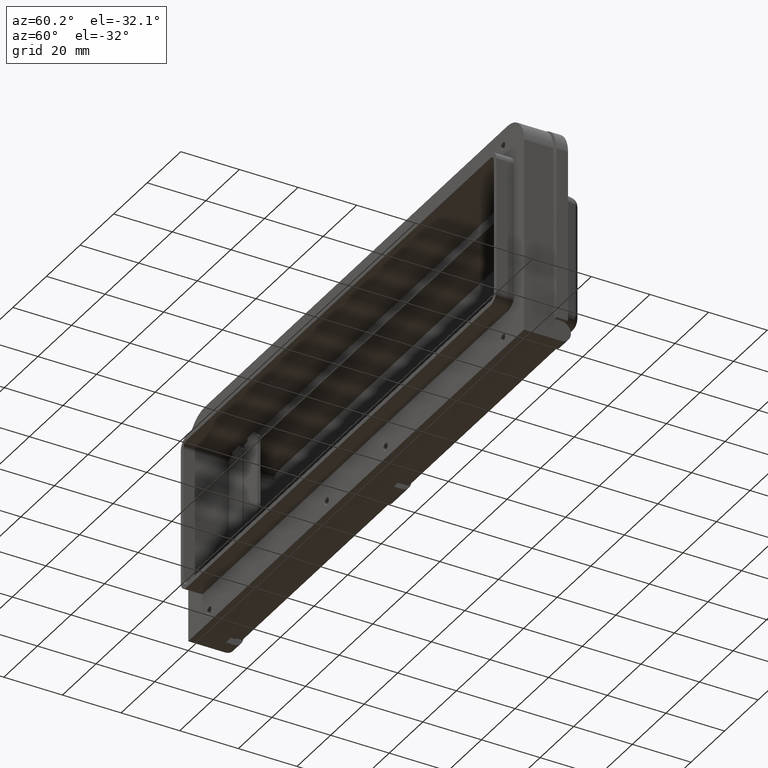
[diagram: clean part render]
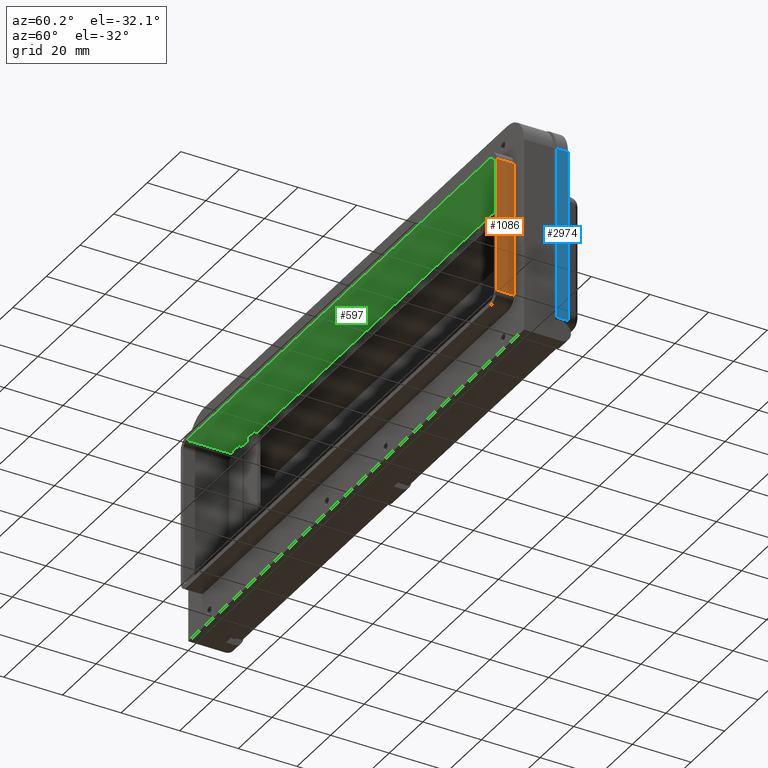
[diagram: same view with three faces highlighted in distinct colors, each labeled with its STEP entity id]
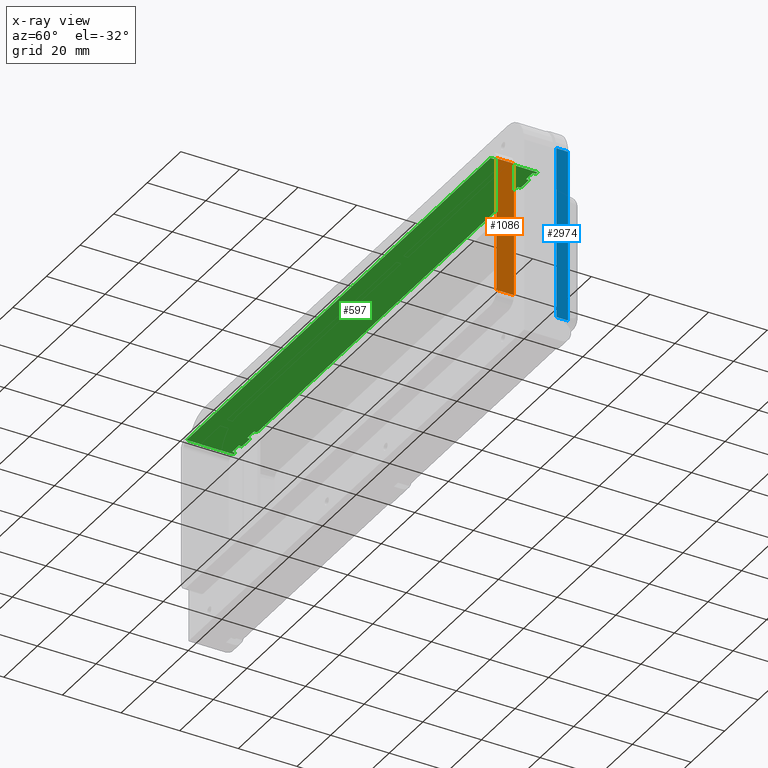
[diagram: x-ray of the same camera — body ghosted, the three highlighted faces saturated]
A machine part, auxiliary view with three faces highlighted in distinct colors.
The next image is the same camera in x-ray (body ghosted, the three faces saturated) — at least one of them is partly hidden behind the body in this view.
Their STEP definitions:

[orange] entity #1086 — the highlighted planar face has unit normal (-1, 0, -0).
#642 = EDGE_CURVE ( 'NONE', #644, #723, #1524, .T. ) ;
#644 = VERTEX_POINT ( 'NONE', #1520 ) ;
#723 = VERTEX_POINT ( 'NONE', #1756 ) ;
#911 = EDGE_CURVE ( 'NONE', #7646, #644, #2330, .T. ) ;
#1082 = EDGE_LOOP ( 'NONE', ( #1084, #1127, #1128, #1513 ) ) ;
#1084 = ORIENTED_EDGE ( 'NONE', *, *, #642, .T. ) ;
#1086 = ADVANCED_FACE ( 'NONE', ( #3782 ), #3738, .F. ) ;
#1098 = EDGE_CURVE ( 'NONE', #1099, #723, #3827, .T. ) ;
#1099 = VERTEX_POINT ( 'NONE', #3821 ) ;
#1127 = ORIENTED_EDGE ( 'NONE', *, *, #1098, .F. ) ;
#1128 = ORIENTED_EDGE ( 'NONE', *, *, #7645, .F. ) ;
#1513 = ORIENTED_EDGE ( 'NONE', *, *, #911, .T. ) ;
#1520 = CARTESIAN_POINT ( 'NONE',  ( 93.99999999999998600, 0.0000000000000000000, -22.99999999999991500 ) ) ;
#1521 = DIRECTION ( 'NONE',  ( -0.0000000000000000000, -0.0000000000000000000, 1.000000000000000000 ) ) ;
#1522 = VECTOR ( 'NONE', #1521, 1000.000000000000000 ) ;
#1523 = CARTESIAN_POINT ( 'NONE',  ( 94.00000000000000000, 0.0000000000000000000, 22.99999999999996100 ) ) ;
#1524 = LINE ( 'NONE', #1523, #1522 ) ;
#1756 = CARTESIAN_POINT ( 'NONE',  ( 94.00000000000000000, 0.0000000000000000000, 22.99999999999996100 ) ) ;
#2326 = DIRECTION ( 'NONE',  ( -0.0000000000000000000, 1.000000000000000000, -0.0000000000000000000 ) ) ;
#2328 = VECTOR ( 'NONE', #2326, 1000.000000000000000 ) ;
#2329 = CARTESIAN_POINT ( 'NONE',  ( 94.00000000000000000, -6.000000000000000000, -22.99999999999991100 ) ) ;
#2330 = LINE ( 'NONE', #2329, #2328 ) ;
#2336 = CARTESIAN_POINT ( 'NONE',  ( 94.00000000000000000, -6.000000000000000000, 22.99999999999996100 ) ) ;
#2338 = AXIS2_PLACEMENT_3D ( 'NONE', #2336, #3210, #8591 ) ;
#3210 = DIRECTION ( 'NONE',  ( -1.000000000000000000, 0.0000000000000000000, -0.0000000000000000000 ) ) ;
#3738 = PLANE ( 'NONE',  #2338 ) ;
#3782 = FACE_OUTER_BOUND ( 'NONE', #1082, .T. ) ;
#3821 = CARTESIAN_POINT ( 'NONE',  ( 94.00000000000000000, -6.000000000000000000, 22.99999999999996100 ) ) ;
#3823 = DIRECTION ( 'NONE',  ( -0.0000000000000000000, 1.000000000000000000, -0.0000000000000000000 ) ) ;
#3824 = VECTOR ( 'NONE', #3823, 1000.000000000000000 ) ;
#3825 = CARTESIAN_POINT ( 'NONE',  ( 94.00000000000000000, -6.000000000000000000, 22.99999999999996100 ) ) ;
#3827 = LINE ( 'NONE', #3825, #3824 ) ;
#7645 = EDGE_CURVE ( 'NONE', #7646, #1099, #8495, .T. ) ;
#7646 = VERTEX_POINT ( 'NONE', #8487 ) ;
#8487 = CARTESIAN_POINT ( 'NONE',  ( 94.00000000000000000, -6.000000000000000000, -22.99999999999991100 ) ) ;
#8488 = DIRECTION ( 'NONE',  ( -0.0000000000000000000, -0.0000000000000000000, 1.000000000000000000 ) ) ;
#8489 = VECTOR ( 'NONE', #8488, 1000.000000000000000 ) ;
#8490 = CARTESIAN_POINT ( 'NONE',  ( 94.00000000000000000, -6.000000000000000000, 22.99999999999996100 ) ) ;
#8495 = LINE ( 'NONE', #8490, #8489 ) ;
#8591 = DIRECTION ( 'NONE',  ( -0.0000000000000000000, 0.0000000000000000000, 1.000000000000000000 ) ) ;

[blue] entity #2974 — the highlighted planar face has unit normal (-1, 0, 0).
#257 = VERTEX_POINT ( 'NONE', #5207 ) ;
#259 = EDGE_CURVE ( 'NONE', #260, #257, #5202, .T. ) ;
#260 = VERTEX_POINT ( 'NONE', #5196 ) ;
#539 = VERTEX_POINT ( 'NONE', #1288 ) ;
#541 = EDGE_CURVE ( 'NONE', #539, #542, #1287, .T. ) ;
#542 = VERTEX_POINT ( 'NONE', #1283 ) ;
#1283 = CARTESIAN_POINT ( 'NONE',  ( 100.0000000000000000, 15.00000000000000000, -30.45000000000000600 ) ) ;
#1284 = DIRECTION ( 'NONE',  ( 0.0000000000000000000, 0.0000000000000000000, -1.000000000000000000 ) ) ;
#1285 = VECTOR ( 'NONE', #1284, 1000.000000000000000 ) ;
#1286 = CARTESIAN_POINT ( 'NONE',  ( 100.0000000000000000, 15.00000000000000000, 28.54999999999999400 ) ) ;
#1287 = LINE ( 'NONE', #1286, #1285 ) ;
#1288 = CARTESIAN_POINT ( 'NONE',  ( 100.0000000000000000, 15.00000000000000000, 28.54999999999999400 ) ) ;
#2970 = EDGE_CURVE ( 'NONE', #539, #260, #7989, .T. ) ;
#2974 = ADVANCED_FACE ( 'NONE', ( #8040 ), #8025, .F. ) ;
#2977 = EDGE_LOOP ( 'NONE', ( #2980, #2985, #2988, #2989 ) ) ;
#2980 = ORIENTED_EDGE ( 'NONE', *, *, #259, .T. ) ;
#2985 = ORIENTED_EDGE ( 'NONE', *, *, #2987, .F. ) ;
#2987 = EDGE_CURVE ( 'NONE', #542, #257, #8019, .T. ) ;
#2988 = ORIENTED_EDGE ( 'NONE', *, *, #541, .F. ) ;
#2989 = ORIENTED_EDGE ( 'NONE', *, *, #2970, .T. ) ;
#5196 = CARTESIAN_POINT ( 'NONE',  ( 100.0000000000000000, 11.00000000000000000, 28.54999999999999400 ) ) ;
#5199 = DIRECTION ( 'NONE',  ( 0.0000000000000000000, 0.0000000000000000000, -1.000000000000000000 ) ) ;
#5200 = VECTOR ( 'NONE', #5199, 1000.000000000000000 ) ;
#5201 = CARTESIAN_POINT ( 'NONE',  ( 100.0000000000000000, 11.00000000000000000, 28.54999999999999400 ) ) ;
#5202 = LINE ( 'NONE', #5201, #5200 ) ;
#5207 = CARTESIAN_POINT ( 'NONE',  ( 100.0000000000000000, 11.00000000000000000, -30.45000000000000600 ) ) ;
#7987 = VECTOR ( 'NONE', #8041, 1000.000000000000000 ) ;
#7988 = CARTESIAN_POINT ( 'NONE',  ( 100.0000000000000000, 15.00000000000000000, 28.54999999999999400 ) ) ;
#7989 = LINE ( 'NONE', #7988, #7987 ) ;
#8016 = DIRECTION ( 'NONE',  ( -0.0000000000000000000, -1.000000000000000000, -0.0000000000000000000 ) ) ;
#8017 = VECTOR ( 'NONE', #8016, 1000.000000000000000 ) ;
#8018 = CARTESIAN_POINT ( 'NONE',  ( 100.0000000000000000, 15.00000000000000000, -30.45000000000000600 ) ) ;
#8019 = LINE ( 'NONE', #8018, #8017 ) ;
#8021 = DIRECTION ( 'NONE',  ( 0.0000000000000000000, 0.0000000000000000000, 1.000000000000000000 ) ) ;
#8022 = DIRECTION ( 'NONE',  ( -1.000000000000000000, 0.0000000000000000000, 0.0000000000000000000 ) ) ;
#8023 = CARTESIAN_POINT ( 'NONE',  ( 100.0000000000000000, 15.00000000000000000, 28.54999999999999400 ) ) ;
#8024 = AXIS2_PLACEMENT_3D ( 'NONE', #8023, #8022, #8021 ) ;
#8025 = PLANE ( 'NONE',  #8024 ) ;
#8040 = FACE_OUTER_BOUND ( 'NONE', #2977, .T. ) ;
#8041 = DIRECTION ( 'NONE',  ( -0.0000000000000000000, -1.000000000000000000, -0.0000000000000000000 ) ) ;

[green] entity #597 — the highlighted planar face has unit normal (-0, 0, 1).
#393 = EDGE_CURVE ( 'NONE', #459, #464, #5857, .T. ) ;
#394 = ORIENTED_EDGE ( 'NONE', *, *, #395, .F. ) ;
#395 = EDGE_CURVE ( 'NONE', #396, #464, #5851, .T. ) ;
#396 = VERTEX_POINT ( 'NONE', #5968 ) ;
#397 = ORIENTED_EDGE ( 'NONE', *, *, #398, .F. ) ;
#398 = EDGE_CURVE ( 'NONE', #399, #396, #5966, .T. ) ;
#399 = VERTEX_POINT ( 'NONE', #5961 ) ;
#400 = ORIENTED_EDGE ( 'NONE', *, *, #401, .T. ) ;
#401 = EDGE_CURVE ( 'NONE', #399, #402, #5957, .T. ) ;
#402 = VERTEX_POINT ( 'NONE', #5951 ) ;
#403 = ORIENTED_EDGE ( 'NONE', *, *, #404, .T. ) ;
#404 = EDGE_CURVE ( 'NONE', #402, #405, #5945, .T. ) ;
#405 = VERTEX_POINT ( 'NONE', #5936 ) ;
#406 = ORIENTED_EDGE ( 'NONE', *, *, #444, .F. ) ;
#425 = VERTEX_POINT ( 'NONE', #6009 ) ;
#426 = ORIENTED_EDGE ( 'NONE', *, *, #427, .T. ) ;
#427 = EDGE_CURVE ( 'NONE', #425, #428, #6007, .T. ) ;
#428 = VERTEX_POINT ( 'NONE', #5999 ) ;
#429 = ORIENTED_EDGE ( 'NONE', *, *, #507, .F. ) ;
#430 = ORIENTED_EDGE ( 'NONE', *, *, #431, .T. ) ;
#431 = EDGE_CURVE ( 'NONE', #511, #432, #5992, .T. ) ;
#432 = VERTEX_POINT ( 'NONE', #5984 ) ;
#433 = ORIENTED_EDGE ( 'NONE', *, *, #588, .T. ) ;
#444 = EDGE_CURVE ( 'NONE', #445, #405, #6074, .T. ) ;
#445 = VERTEX_POINT ( 'NONE', #6067 ) ;
#446 = ORIENTED_EDGE ( 'NONE', *, *, #447, .F. ) ;
#447 = EDGE_CURVE ( 'NONE', #448, #445, #6064, .T. ) ;
#448 = VERTEX_POINT ( 'NONE', #6056 ) ;
#449 = ORIENTED_EDGE ( 'NONE', *, *, #450, .T. ) ;
#450 = EDGE_CURVE ( 'NONE', #448, #451, #6048, .T. ) ;
#451 = VERTEX_POINT ( 'NONE', #6041 ) ;
#452 = ORIENTED_EDGE ( 'NONE', *, *, #453, .T. ) ;
#453 = EDGE_CURVE ( 'NONE', #451, #454, #6039, .T. ) ;
#454 = VERTEX_POINT ( 'NONE', #6034 ) ;
#455 = ORIENTED_EDGE ( 'NONE', *, *, #456, .F. ) ;
#456 = EDGE_CURVE ( 'NONE', #457, #454, #6030, .T. ) ;
#457 = VERTEX_POINT ( 'NONE', #1164 ) ;
#458 = ORIENTED_EDGE ( 'NONE', *, *, #463, .T. ) ;
#459 = VERTEX_POINT ( 'NONE', #1163 ) ;
#460 = ORIENTED_EDGE ( 'NONE', *, *, #461, .T. ) ;
#461 = EDGE_CURVE ( 'NONE', #465, #459, #1162, .T. ) ;
#462 = ORIENTED_EDGE ( 'NONE', *, *, #393, .T. ) ;
#463 = EDGE_CURVE ( 'NONE', #592, #465, #1158, .T. ) ;
#464 = VERTEX_POINT ( 'NONE', #1154 ) ;
#465 = VERTEX_POINT ( 'NONE', #1153 ) ;
#469 = EDGE_LOOP ( 'NONE', ( #598, #426, #429, #509, #430, #433, #590, #458, #460, #462, #394, #397, #400, #403, #406, #446, #449, #452, #455, #568 ) ) ;
#507 = EDGE_CURVE ( 'NONE', #508, #428, #1223, .T. ) ;
#508 = VERTEX_POINT ( 'NONE', #1219 ) ;
#509 = ORIENTED_EDGE ( 'NONE', *, *, #510, .T. ) ;
#510 = EDGE_CURVE ( 'NONE', #508, #511, #1276, .T. ) ;
#511 = VERTEX_POINT ( 'NONE', #1272 ) ;
#568 = ORIENTED_EDGE ( 'NONE', *, *, #569, .F. ) ;
#569 = EDGE_CURVE ( 'NONE', #600, #457, #1368, .T. ) ;
#588 = EDGE_CURVE ( 'NONE', #432, #589, #1415, .T. ) ;
#589 = VERTEX_POINT ( 'NONE', #1411 ) ;
#590 = ORIENTED_EDGE ( 'NONE', *, *, #591, .F. ) ;
#591 = EDGE_CURVE ( 'NONE', #592, #589, #1410, .T. ) ;
#592 = VERTEX_POINT ( 'NONE', #1406 ) ;
#597 = ADVANCED_FACE ( 'NONE', ( #1449 ), #1434, .F. ) ;
#598 = ORIENTED_EDGE ( 'NONE', *, *, #599, .T. ) ;
#599 = EDGE_CURVE ( 'NONE', #600, #425, #1429, .T. ) ;
#600 = VERTEX_POINT ( 'NONE', #1482 ) ;
#1153 = CARTESIAN_POINT ( 'NONE',  ( 89.50000000000000000, 9.000000000000001800, 24.99999999999998200 ) ) ;
#1154 = CARTESIAN_POINT ( 'NONE',  ( 90.50000000000000000, 10.00000000000000000, 24.99999999999998200 ) ) ;
#1155 = DIRECTION ( 'NONE',  ( 1.000000000000000000, 0.0000000000000000000, 1.150092912249816900E-016 ) ) ;
#1156 = VECTOR ( 'NONE', #1155, 1000.000000000000000 ) ;
#1157 = CARTESIAN_POINT ( 'NONE',  ( -166.6965511181272700, 9.000000000000001800, 24.99999999999995000 ) ) ;
#1158 = LINE ( 'NONE', #1157, #1156 ) ;
#1159 = DIRECTION ( 'NONE',  ( 0.0000000000000000000, 1.000000000000000000, 0.0000000000000000000 ) ) ;
#1160 = VECTOR ( 'NONE', #1159, 1000.000000000000000 ) ;
#1161 = CARTESIAN_POINT ( 'NONE',  ( 89.50000000000000000, 9.000000000000001800, 24.99999999999997900 ) ) ;
#1162 = LINE ( 'NONE', #1161, #1160 ) ;
#1163 = CARTESIAN_POINT ( 'NONE',  ( 89.50000000000000000, 10.00000000000000000, 24.99999999999997900 ) ) ;
#1164 = CARTESIAN_POINT ( 'NONE',  ( -80.50000000000000000, 9.000000000000001800, 24.99999999999996100 ) ) ;
#1219 = CARTESIAN_POINT ( 'NONE',  ( 76.49999999999992900, 9.000000000000001800, 24.99999999999998200 ) ) ;
#1220 = DIRECTION ( 'NONE',  ( 0.0000000000000000000, 1.000000000000000000, 0.0000000000000000000 ) ) ;
#1221 = VECTOR ( 'NONE', #1220, 1000.000000000000000 ) ;
#1222 = CARTESIAN_POINT ( 'NONE',  ( 76.49999999999994300, 9.000000000000001800, 24.99999999999997900 ) ) ;
#1223 = LINE ( 'NONE', #1222, #1221 ) ;
#1272 = CARTESIAN_POINT ( 'NONE',  ( 80.49999999999998600, 9.000000000000001800, 24.99999999999998200 ) ) ;
#1273 = DIRECTION ( 'NONE',  ( 1.000000000000000000, 0.0000000000000000000, 1.150092912249816900E-016 ) ) ;
#1274 = VECTOR ( 'NONE', #1273, 1000.000000000000000 ) ;
#1275 = CARTESIAN_POINT ( 'NONE',  ( -175.6965511181273000, 9.000000000000001800, 24.99999999999995000 ) ) ;
#1276 = LINE ( 'NONE', #1275, #1274 ) ;
#1365 = DIRECTION ( 'NONE',  ( -1.000000000000000000, 0.0000000000000000000, 1.150092912249816900E-016 ) ) ;
#1366 = VECTOR ( 'NONE', #1365, 1000.000000000000000 ) ;
#1367 = CARTESIAN_POINT ( 'NONE',  ( 175.6965511181273000, 9.000000000000001800, 24.99999999999995000 ) ) ;
#1368 = LINE ( 'NONE', #1367, #1366 ) ;
#1406 = CARTESIAN_POINT ( 'NONE',  ( 85.49999999999994300, 9.000000000000001800, 24.99999999999998200 ) ) ;
#1407 = DIRECTION ( 'NONE',  ( 0.0000000000000000000, 1.000000000000000000, 0.0000000000000000000 ) ) ;
#1408 = VECTOR ( 'NONE', #1407, 1000.000000000000000 ) ;
#1409 = CARTESIAN_POINT ( 'NONE',  ( 85.49999999999994300, 9.000000000000001800, 24.99999999999997900 ) ) ;
#1410 = LINE ( 'NONE', #1409, #1408 ) ;
#1411 = CARTESIAN_POINT ( 'NONE',  ( 85.49999999999994300, 10.00000000000000000, 24.99999999999998200 ) ) ;
#1412 = DIRECTION ( 'NONE',  ( 1.000000000000000000, 0.0000000000000000000, 1.150092912249816900E-016 ) ) ;
#1413 = VECTOR ( 'NONE', #1412, 1000.000000000000000 ) ;
#1414 = CARTESIAN_POINT ( 'NONE',  ( -90.50000000000000000, 10.00000000000000000, 24.99999999999996100 ) ) ;
#1415 = LINE ( 'NONE', #1414, #1413 ) ;
#1427 = VECTOR ( 'NONE', #1483, 1000.000000000000000 ) ;
#1428 = CARTESIAN_POINT ( 'NONE',  ( -76.49999999999994300, 9.000000000000001800, 24.99999999999997900 ) ) ;
#1429 = LINE ( 'NONE', #1428, #1427 ) ;
#1430 = DIRECTION ( 'NONE',  ( 1.000000000000000000, 0.0000000000000000000, 1.150092912249816900E-016 ) ) ;
#1431 = DIRECTION ( 'NONE',  ( -1.150092912249816900E-016, 0.0000000000000000000, 1.000000000000000000 ) ) ;
#1432 = CARTESIAN_POINT ( 'NONE',  ( -90.50000000000000000, -6.001000000000001200, 24.99999999999996100 ) ) ;
#1433 = AXIS2_PLACEMENT_3D ( 'NONE', #1432, #1431, #1430 ) ;
#1434 = PLANE ( 'NONE',  #1433 ) ;
#1449 = FACE_OUTER_BOUND ( 'NONE', #469, .T. ) ;
#1482 = CARTESIAN_POINT ( 'NONE',  ( -76.49999999999994300, 9.000000000000001800, 24.99999999999996100 ) ) ;
#1483 = DIRECTION ( 'NONE',  ( 0.0000000000000000000, 1.000000000000000000, 0.0000000000000000000 ) ) ;
#4645 = DIRECTION ( 'NONE',  ( 0.0000000000000000000, 1.000000000000000000, 0.0000000000000000000 ) ) ;
#5848 = DIRECTION ( 'NONE',  ( -0.0000000000000000000, 1.000000000000000000, -0.0000000000000000000 ) ) ;
#5849 = VECTOR ( 'NONE', #5848, 1000.000000000000000 ) ;
#5850 = CARTESIAN_POINT ( 'NONE',  ( 90.50000000000000000, -6.001000000000001200, 24.99999999999998200 ) ) ;
#5851 = LINE ( 'NONE', #5850, #5849 ) ;
#5853 = DIRECTION ( 'NONE',  ( 1.000000000000000000, 0.0000000000000000000, 1.150092912249816900E-016 ) ) ;
#5855 = VECTOR ( 'NONE', #5853, 1000.000000000000000 ) ;
#5856 = CARTESIAN_POINT ( 'NONE',  ( -90.50000000000000000, 10.00000000000000000, 24.99999999999996100 ) ) ;
#5857 = LINE ( 'NONE', #5856, #5855 ) ;
#5936 = CARTESIAN_POINT ( 'NONE',  ( -89.50000000000000000, 10.00000000000000000, 24.99999999999996100 ) ) ;
#5939 = DIRECTION ( 'NONE',  ( 1.000000000000000000, 0.0000000000000000000, 1.150092912249816900E-016 ) ) ;
#5941 = VECTOR ( 'NONE', #5939, 1000.000000000000000 ) ;
#5943 = CARTESIAN_POINT ( 'NONE',  ( -90.50000000000000000, 10.00000000000000000, 24.99999999999996100 ) ) ;
#5945 = LINE ( 'NONE', #5943, #5941 ) ;
#5951 = CARTESIAN_POINT ( 'NONE',  ( -90.50000000000000000, 10.00000000000000000, 24.99999999999997500 ) ) ;
#5953 = DIRECTION ( 'NONE',  ( -0.0000000000000000000, 1.000000000000000000, -0.0000000000000000000 ) ) ;
#5954 = VECTOR ( 'NONE', #5953, 1000.000000000000000 ) ;
#5956 = CARTESIAN_POINT ( 'NONE',  ( -90.50000000000000000, -6.001000000000001200, 24.99999999999997500 ) ) ;
#5957 = LINE ( 'NONE', #5956, #5954 ) ;
#5961 = CARTESIAN_POINT ( 'NONE',  ( -90.50000000000000000, -6.000000000000000000, 24.99999999999997500 ) ) ;
#5962 = DIRECTION ( 'NONE',  ( 1.000000000000000000, 0.0000000000000000000, 1.150092912249816900E-016 ) ) ;
#5963 = VECTOR ( 'NONE', #5962, 1000.000000000000000 ) ;
#5965 = CARTESIAN_POINT ( 'NONE',  ( -90.50000000000000000, -6.000000000000000000, 24.99999999999996100 ) ) ;
#5966 = LINE ( 'NONE', #5965, #5963 ) ;
#5968 = CARTESIAN_POINT ( 'NONE',  ( 90.50000000000000000, -6.000000000000000000, 24.99999999999998200 ) ) ;
#5984 = CARTESIAN_POINT ( 'NONE',  ( 80.50000000000000000, 10.00000000000000000, 24.99999999999997900 ) ) ;
#5986 = DIRECTION ( 'NONE',  ( 0.0000000000000000000, 1.000000000000000000, 0.0000000000000000000 ) ) ;
#5988 = VECTOR ( 'NONE', #5986, 1000.000000000000000 ) ;
#5990 = CARTESIAN_POINT ( 'NONE',  ( 80.50000000000000000, 9.000000000000001800, 24.99999999999997900 ) ) ;
#5992 = LINE ( 'NONE', #5990, #5988 ) ;
#5999 = CARTESIAN_POINT ( 'NONE',  ( 76.49999999999998600, 10.00000000000000000, 24.99999999999998200 ) ) ;
#6002 = DIRECTION ( 'NONE',  ( 1.000000000000000000, 0.0000000000000000000, 1.150092912249816900E-016 ) ) ;
#6004 = VECTOR ( 'NONE', #6002, 1000.000000000000000 ) ;
#6006 = CARTESIAN_POINT ( 'NONE',  ( -90.50000000000000000, 10.00000000000000000, 24.99999999999996100 ) ) ;
#6007 = LINE ( 'NONE', #6006, #6004 ) ;
#6009 = CARTESIAN_POINT ( 'NONE',  ( -76.49999999999994300, 10.00000000000000000, 24.99999999999997900 ) ) ;
#6028 = VECTOR ( 'NONE', #4645, 1000.000000000000000 ) ;
#6029 = CARTESIAN_POINT ( 'NONE',  ( -80.50000000000000000, 9.000000000000001800, 24.99999999999997900 ) ) ;
#6030 = LINE ( 'NONE', #6029, #6028 ) ;
#6034 = CARTESIAN_POINT ( 'NONE',  ( -80.50000000000000000, 10.00000000000000000, 24.99999999999996100 ) ) ;
#6035 = DIRECTION ( 'NONE',  ( 1.000000000000000000, 0.0000000000000000000, 1.150092912249816900E-016 ) ) ;
#6037 = VECTOR ( 'NONE', #6035, 1000.000000000000000 ) ;
#6038 = CARTESIAN_POINT ( 'NONE',  ( -90.50000000000000000, 10.00000000000000000, 24.99999999999996100 ) ) ;
#6039 = LINE ( 'NONE', #6038, #6037 ) ;
#6041 = CARTESIAN_POINT ( 'NONE',  ( -85.49999999999994300, 10.00000000000000000, 24.99999999999997900 ) ) ;
#6043 = DIRECTION ( 'NONE',  ( 0.0000000000000000000, 1.000000000000000000, 0.0000000000000000000 ) ) ;
#6044 = VECTOR ( 'NONE', #6043, 1000.000000000000000 ) ;
#6046 = CARTESIAN_POINT ( 'NONE',  ( -85.49999999999994300, 9.000000000000001800, 24.99999999999997900 ) ) ;
#6048 = LINE ( 'NONE', #6046, #6044 ) ;
#6056 = CARTESIAN_POINT ( 'NONE',  ( -85.49999999999994300, 9.000000000000001800, 24.99999999999996100 ) ) ;
#6058 = DIRECTION ( 'NONE',  ( -1.000000000000000000, 0.0000000000000000000, 1.150092912249816900E-016 ) ) ;
#6060 = VECTOR ( 'NONE', #6058, 1000.000000000000000 ) ;
#6062 = CARTESIAN_POINT ( 'NONE',  ( 166.6965511181272700, 9.000000000000001800, 24.99999999999995000 ) ) ;
#6064 = LINE ( 'NONE', #6062, #6060 ) ;
#6067 = CARTESIAN_POINT ( 'NONE',  ( -89.50000000000000000, 9.000000000000001800, 24.99999999999996100 ) ) ;
#6069 = DIRECTION ( 'NONE',  ( 0.0000000000000000000, 1.000000000000000000, 0.0000000000000000000 ) ) ;
#6071 = VECTOR ( 'NONE', #6069, 1000.000000000000000 ) ;
#6072 = CARTESIAN_POINT ( 'NONE',  ( -89.50000000000000000, 9.000000000000001800, 24.99999999999997900 ) ) ;
#6074 = LINE ( 'NONE', #6072, #6071 ) ;